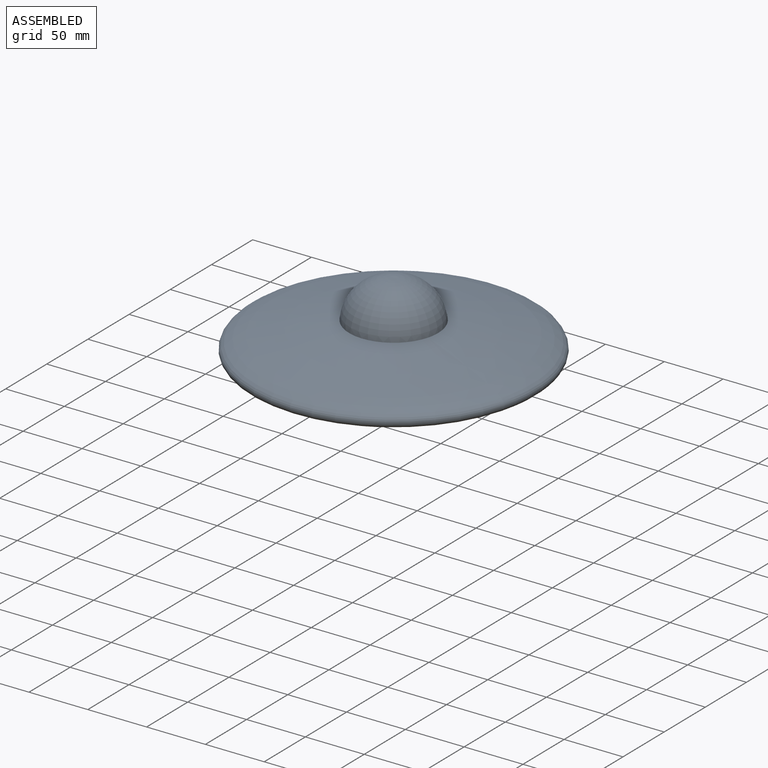
[diagram: assembled view]
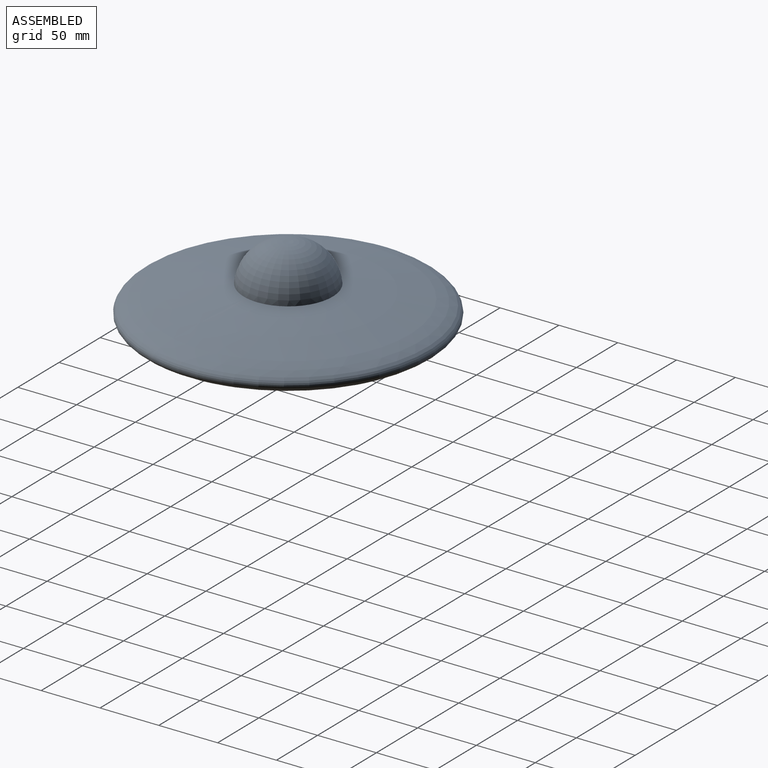
[diagram: assembled view, second angle]
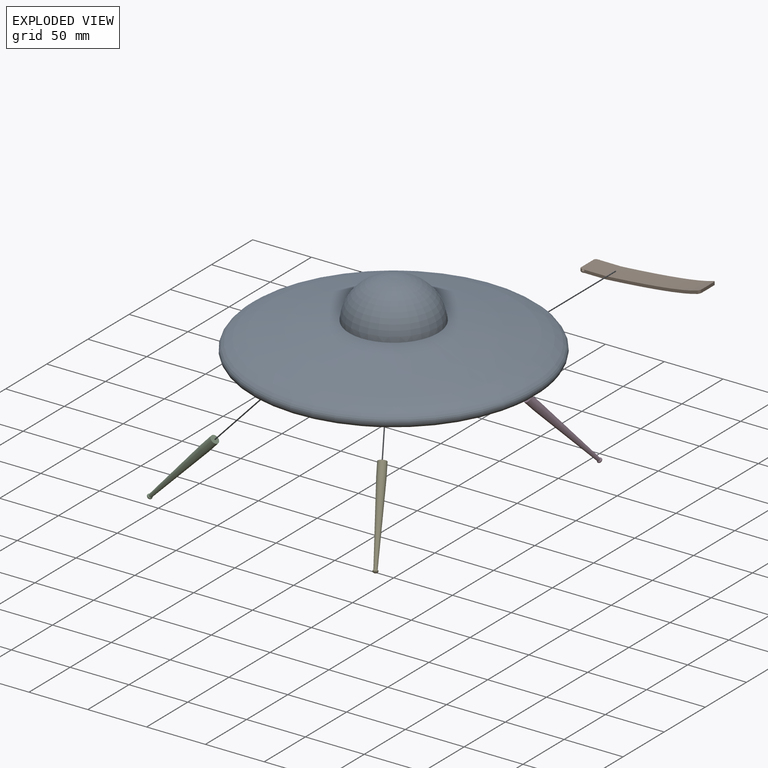
[diagram: exploded view]
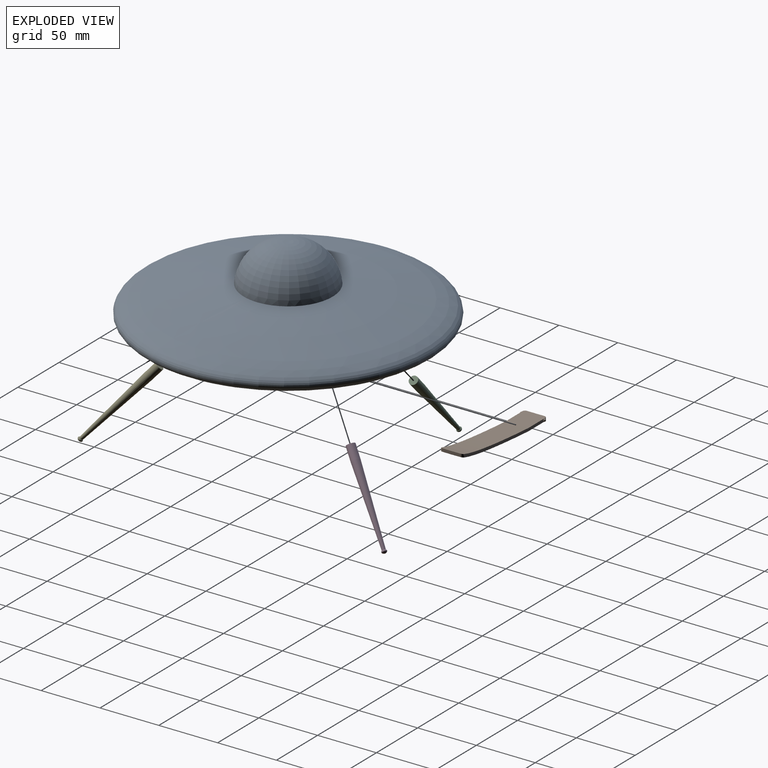
[diagram: exploded view, second angle]
ASSEMBLY  parts=5 mates=4
PART A: 45 faces, bbox 243.8x243.8x73.9 mm
  f0: plane 1.25x1.25mm, normal (0,1,0), area 0.3mm2, adj f7,f41,f44
  f1: plane 1.25x1.25mm, normal (0,1,0), area 0.3mm2, adj f6,f41,f44
  f2: plane 97.16x12.41mm, normal (0,-1,0), area 242.3mm2, adj f4,f5,f6,f7,f36,f43
  f3: plane 1.25x1.25mm, normal (0,-1,0), area 0.3mm2, adj f7,f39,f43
  f4: revolved ~238.79x238.54mm, area -932.9mm2, adj f2,f7,f8,f20,f24,f28,f32,f33
  f5: revolved ~243.21x243.21mm, area 89585.1mm2, adj f2,f6,f14,f17,f18,f19,f35,f36
  f6: plane 71.01x69.68mm, normal (0,0,-1), area 3511mm2, adj f1,f2,f5,f15,f38,f39,f40,f41
  f7: plane 70.82x69.49mm, normal (0,0,1), area 3492.2mm2, adj f0,f2,f3,f4,f16,f39,f40,f41
  f8: torus R=2.99mm, axis (0,0,1), area 7448.6mm2, adj f4,f12,f20,f24,f28
  f9: revolved ~9.39x9.16mm, area 10.2mm2, adj f17,f29
  f10: revolved ~9.39x9.16mm, area 10.2mm2, adj f18,f25
  f11: revolved ~7.5x6.59mm, area 10.2mm2, adj f19,f21
  f12: plane 0.52x0.52mm, normal (0,0,-1), area 0.2mm2, adj f8,f13
  f13: cone r=0.05mm half-angle=0.2deg, axis (0,0,-1), area 0.9mm2, adj f12,f14
  f14: torus R=2.99mm, axis (0,0,1), area 8068.6mm2, adj f5,f13
  f15: cylinder r=0.26mm len=0.52mm, axis (0,0,1), area 0.3mm2, adj f6,f16
  f16: cone r=0.25mm half-angle=0.2deg, axis (0,0,-1), area 3.8mm2, adj f7,f15
  f17: cone r=1.5mm half-angle=1.8deg, axis (-0.34,-0.59,0.73), area 62.2mm2, adj f5,f9,f30
  f18: cone r=1.5mm half-angle=1.8deg, axis (-0.34,0.59,0.73), area 62.2mm2, adj f5,f10,f26
  f19: cone r=1.5mm half-angle=1.8deg, axis (0.69,0,0.73), area 65.6mm2, adj f5,f11,f22
  f20: cylinder r=5.63mm len=40.29mm, axis (0.69,0,0.73), area 1278mm2, adj f4,f8,f23,f34
  f21: cylinder r=3.63mm len=38.21mm, axis (0.69,0,0.73), area 984.3mm2, adj f11,f22,f23
  f22: revolved ~7.05x3.47mm, area 3.9mm2, adj f19,f21
  f23: plane 11.26x8.19mm, normal (0.69,0,0.73), area 58.2mm2, adj f20,f21
  f24: cylinder r=5.63mm len=40.29mm, axis (-0.34,0.59,0.73), area 1278mm2, adj f4,f8,f27,f33
  f25: cylinder r=3.63mm len=38.21mm, axis (-0.34,0.59,0.73), area 984.3mm2, adj f10,f26,f27
  f26: revolved ~7.63x6.35mm, area 3.9mm2, adj f18,f25
  f27: plane 10.58x9.05mm, normal (-0.34,0.59,0.73), area 58.2mm2, adj f24,f25
  f28: cylinder r=5.63mm len=40.29mm, axis (-0.34,-0.59,0.73), area 1278mm2, adj f4,f8,f31,f32
  f29: cylinder r=3.63mm len=38.21mm, axis (-0.34,-0.59,0.73), area 984.3mm2, adj f9,f30,f31
  f30: revolved ~7.63x6.35mm, area 3.9mm2, adj f17,f29
  f31: plane 10.58x9.05mm, normal (-0.34,-0.59,0.73), area 58.2mm2, adj f28,f29
  f32: bspline ~25.83x23mm, area 447.3mm2, adj f4,f28
  f33: bspline ~25.82x22.99mm, area 447.3mm2, adj f4,f24
  f34: bspline ~27.12x21.45mm, area 447.3mm2, adj f4,f20
  f35: plane 15.8x3.29mm, normal (-1,0,0), area 40.5mm2, adj f4,f5,f36,f37
  f36: cylinder r=2mm len=3.26mm, axis (0,0,-1), area 8.3mm2, adj f2,f4,f5,f35
  f37: cylinder r=2mm len=3.26mm, axis (0,0,-1), area 8.3mm2, adj f4,f5,f35,f42
  f38: plane 1.25x1.25mm, normal (0,-1,0), area 0.3mm2, adj f6,f39,f43
  f39: cylinder r=2mm len=2.5mm, axis (0,0,-1), area 7.9mm2, adj f3,f6,f7,f38,f40
  f40: plane 15.26x2.5mm, normal (1,0,0), area 38.1mm2, adj f6,f7,f39,f41
  f41: cylinder r=2mm len=2.5mm, axis (0,0,-1), area 7.9mm2, adj f0,f1,f6,f7,f40
  f42: plane 97.16x12.41mm, normal (0,1,0), area 242.3mm2, adj f4,f5,f6,f7,f37,f44
  f43: sphere r=1.25mm, area 9.8mm2, adj f2,f3,f38
  f44: sphere r=1.25mm, area 9.8mm2, adj f0,f1,f42
PART B: 19 faces, bbox 103.2x62.7x13.6 mm
  f0: cylinder r=2mm len=2.5mm, axis (0,0,-1), area 6mm2, adj f1,f3,f6,f7,f8,f18
  f1: plane 15.26x1.15mm, normal (-1,0,0), area 17.6mm2, adj f0,f2,f8,f18
  f2: cylinder r=2mm len=2.5mm, axis (0,0,-1), area 6mm2, adj f1,f3,f4,f5,f8,f18
  f3: plane 22.21x19.26mm, normal (0,0,-1), area 419.2mm2, adj f0,f2,f5,f6,f13,f14,f15,f18
  f4: plane 1.25x1.25mm, normal (0,-1,0), area 0.3mm2, adj f2,f8,f17
  f5: plane 1.25x1.25mm, normal (0,-1,0), area 0.3mm2, adj f2,f3,f17
  f6: plane 1.25x1.25mm, normal (0,1,0), area 0.3mm2, adj f0,f3,f16
  f7: plane 1.25x1.25mm, normal (0,1,0), area 0.3mm2, adj f0,f8,f16
  f8: plane 23.75x19.26mm, normal (0,0,1), area 447.2mm2, adj f0,f1,f2,f4,f7,f9,f13,f14
  f9: revolved ~80.25x62.18mm, area 1538.3mm2, adj f8,f10,f11,f12,f13,f14
  f10: plane 15.8x3.29mm, normal (1,0,0), area 40.5mm2, adj f9,f11,f12,f15
  f11: cylinder r=2mm len=3.26mm, axis (0,0,-1), area 8.3mm2, adj f9,f10,f13,f15
  f12: cylinder r=2mm len=3.26mm, axis (0,0,-1), area 8.3mm2, adj f9,f10,f14,f15
  f13: plane 97.16x12.41mm, normal (0,1,0), area 242.3mm2, adj f3,f8,f9,f11,f15,f16
  f14: plane 97.16x12.41mm, normal (0,-1,0), area 242.3mm2, adj f3,f8,f9,f12,f15,f17
  f15: revolved ~80.15x62.01mm, area 1535.8mm2, adj f3,f10,f11,f12,f13,f14
  f16: sphere r=1.25mm, area 9.8mm2, adj f6,f7,f13
  f17: sphere r=1.25mm, area 9.8mm2, adj f4,f5,f14
  f18: cylinder r=2.03mm len=19.19mm, axis (0,-1,0), area 38.4mm2, adj f0,f1,f2,f3
PART C: 5 faces, bbox 60x7.3x63 mm
  f0: plane 7.26x5.28mm, normal (0.69,0,0.73), area 41.4mm2, adj f1
  f1: cylinder r=3.63mm len=13.84mm, axis (0.69,0,0.73), area 277.8mm2, adj f0,f2
  f2: cone r=1.5mm half-angle=1.8deg, axis (0.69,0,0.73), area 1089.6mm2, adj f1,f4
  f3: sphere r=2.5mm, area 13.6mm2, adj f4
  f4: torus R=1.14mm, axis (-0.69,0,-0.73), area 23.6mm2, adj f2,f3
PART D: 5 faces, bbox 33.3x52.9x62.9 mm
  f0: plane 6.82x5.84mm, normal (-0.34,-0.59,0.73), area 41.4mm2, adj f1
  f1: cylinder r=3.63mm len=13.84mm, axis (-0.34,-0.59,0.73), area 277.8mm2, adj f0,f2
  f2: cone r=1.5mm half-angle=1.8deg, axis (-0.34,-0.59,0.73), area 1089.6mm2, adj f1,f4
  f3: sphere r=2.5mm, area 13.6mm2, adj f4
  f4: torus R=1.14mm, axis (0.34,0.59,-0.73), area 23.6mm2, adj f2,f3
PART E: 5 faces, bbox 33.3x52.9x62.9 mm
  f0: plane 6.82x5.84mm, normal (-0.34,0.59,0.73), area 41.4mm2, adj f1
  f1: cylinder r=3.63mm len=13.84mm, axis (-0.34,0.59,0.73), area 277.8mm2, adj f0,f2
  f2: cone r=1.5mm half-angle=1.8deg, axis (-0.34,0.59,0.73), area 1089.6mm2, adj f1,f4
  f3: sphere r=2.5mm, area 13.6mm2, adj f4
  f4: torus R=1.14mm, axis (0.34,-0.59,-0.73), area 23.6mm2, adj f2,f3
PLACE A at identity fixed
PLACE B rot(axis=(0,1,0),0.1deg) t=(0.08,0,0.03)mm
PLACE C t=(40.79,0,43.18)mm
PLACE D t=(-20.77,-35.97,43.97)mm
PLACE E t=(-19.92,34.51,42.18)mm
MATE revolute B.f4 <-> A.f0  axis (0,-1,0) through (14.91,-9.63,-36.04)mm
MATE slider D.f2 <-> A.f28  axis (-0.34,-0.59,0.73) through (3.03,5.25,24.18)mm
MATE slider C.f2 <-> A.f20  axis (0.69,0,0.73) through (-10.99,0,18.96)mm
MATE slider E.f2 <-> A.f24  axis (-0.34,0.59,0.73) through (5.97,-10.33,17.96)mm
